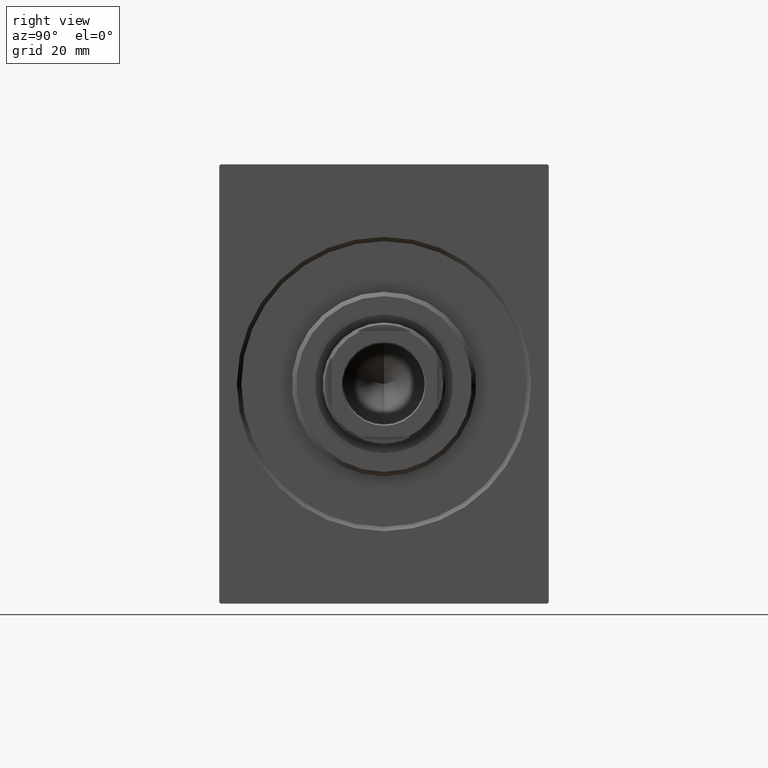
[diagram: clean part render]
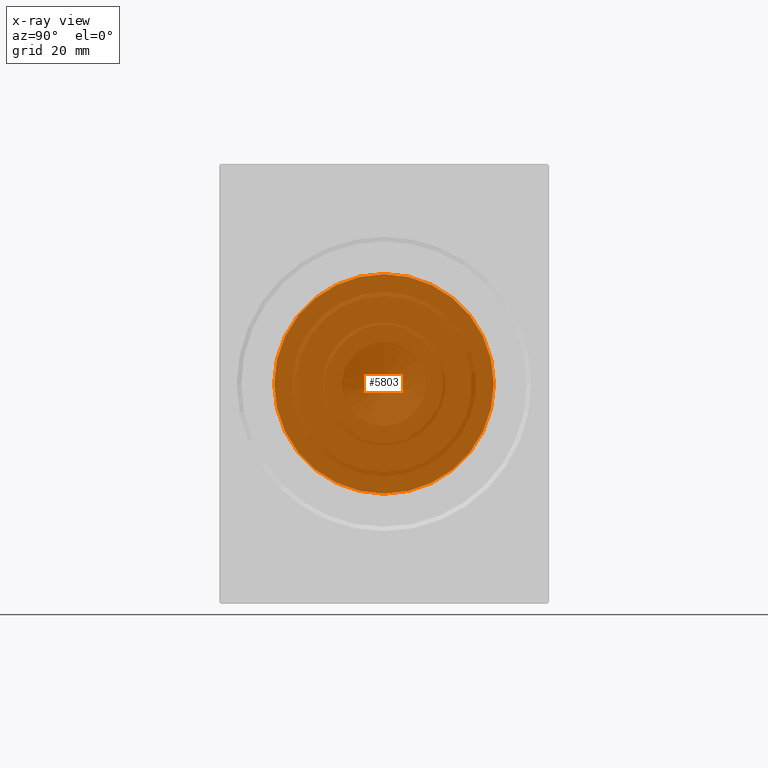
[diagram: x-ray — body ghosted, one internal face saturated and labeled with its STEP entity id]
A machine part, right view, then the same camera in x-ray: the body is ghosted and one INTERNAL B-rep face — a face not visible from any outside direction — is saturated and labeled: STEP entity #5803.
In plain terms, the highlighted planar face has unit normal (1, 0, -0).
Its self-contained STEP definition (entity closure, byte-faithful):
#376 = DIRECTION ( 'NONE',  ( 0.000000000000000000, 0.000000000000000000, 1.000000000000000000 ) ) ;
#1548 = CARTESIAN_POINT ( 'NONE',  ( 84.00000000000000000, 0.000000000000000000, 25.00000000000000000 ) ) ;
#2319 = VERTEX_POINT ( 'NONE', #11135 ) ;
#4533 = CIRCLE ( 'NONE', #36429, 25.00000000000000000 ) ;
#5753 = ORIENTED_EDGE ( 'NONE', *, *, #31417, .T. ) ;
#5803 = ADVANCED_FACE ( 'NONE', ( #41734 ), #11141, .T. ) ;
#9599 = CIRCLE ( 'NONE', #10283, 25.00000000000000000 ) ;
#10283 = AXIS2_PLACEMENT_3D ( 'NONE', #23140, #36378, #376 ) ;
#11135 = CARTESIAN_POINT ( 'NONE',  ( 84.00000000000000000, 3.061616997868382254E-15, -25.00000000000000000 ) ) ;
#11141 = PLANE ( 'NONE',  #37415 ) ;
#11349 = DIRECTION ( 'NONE',  ( -1.000000000000000000, 0.000000000000000000, 0.000000000000000000 ) ) ;
#13240 = DIRECTION ( 'NONE',  ( 0.000000000000000000, 0.000000000000000000, 1.000000000000000000 ) ) ;
#13384 = VERTEX_POINT ( 'NONE', #1548 ) ;
#13907 = ORIENTED_EDGE ( 'NONE', *, *, #36211, .T. ) ;
#21918 = DIRECTION ( 'NONE',  ( -1.000000000000000000, 0.000000000000000000, 0.000000000000000000 ) ) ;
#23140 = CARTESIAN_POINT ( 'NONE',  ( 84.00000000000000000, 0.000000000000000000, 0.000000000000000000 ) ) ;
#24408 = CARTESIAN_POINT ( 'NONE',  ( 84.00000000000000000, 0.000000000000000000, 0.000000000000000000 ) ) ;
#26935 = CARTESIAN_POINT ( 'NONE',  ( 84.00000000000000000, 0.000000000000000000, 0.000000000000000000 ) ) ;
#28079 = DIRECTION ( 'NONE',  ( 0.000000000000000000, 0.000000000000000000, 1.000000000000000000 ) ) ;
#29576 = EDGE_LOOP ( 'NONE', ( #5753, #13907 ) ) ;
#31417 = EDGE_CURVE ( 'NONE', #13384, #2319, #9599, .T. ) ;
#36211 = EDGE_CURVE ( 'NONE', #2319, #13384, #4533, .T. ) ;
#36378 = DIRECTION ( 'NONE',  ( -1.000000000000000000, 0.000000000000000000, 0.000000000000000000 ) ) ;
#36429 = AXIS2_PLACEMENT_3D ( 'NONE', #26935, #21918, #13240 ) ;
#37415 = AXIS2_PLACEMENT_3D ( 'NONE', #24408, #11349, #28079 ) ;
#41734 = FACE_OUTER_BOUND ( 'NONE', #29576, .T. ) ;